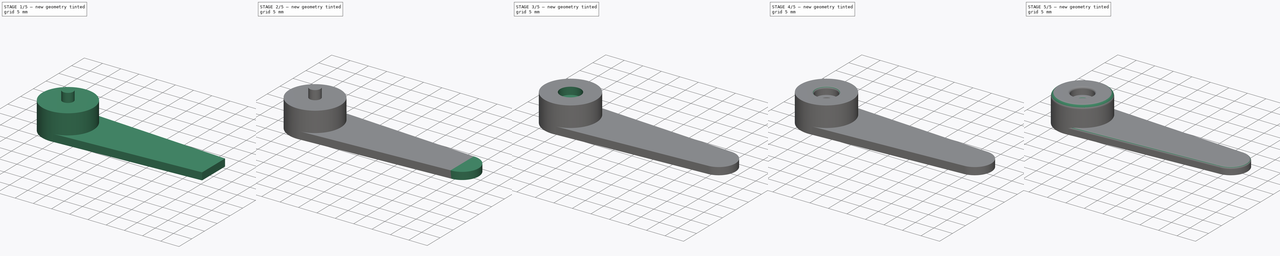
[diagram: build sequence overview — one tinted view per stage of 5, left to right]
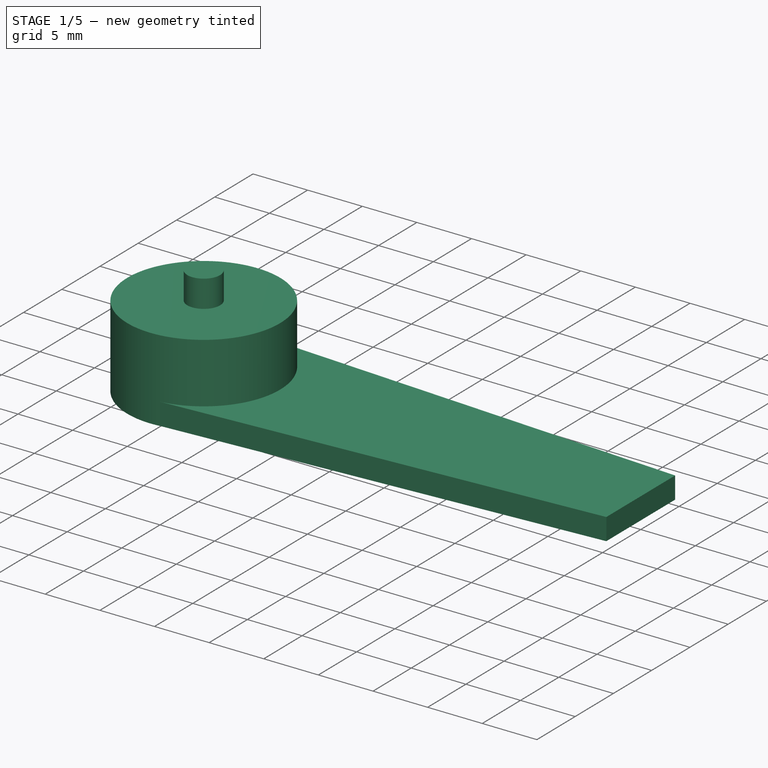
[diagram: stage 1 of 5 — iso view after this stage's code; geometry added in this stage tinted green]
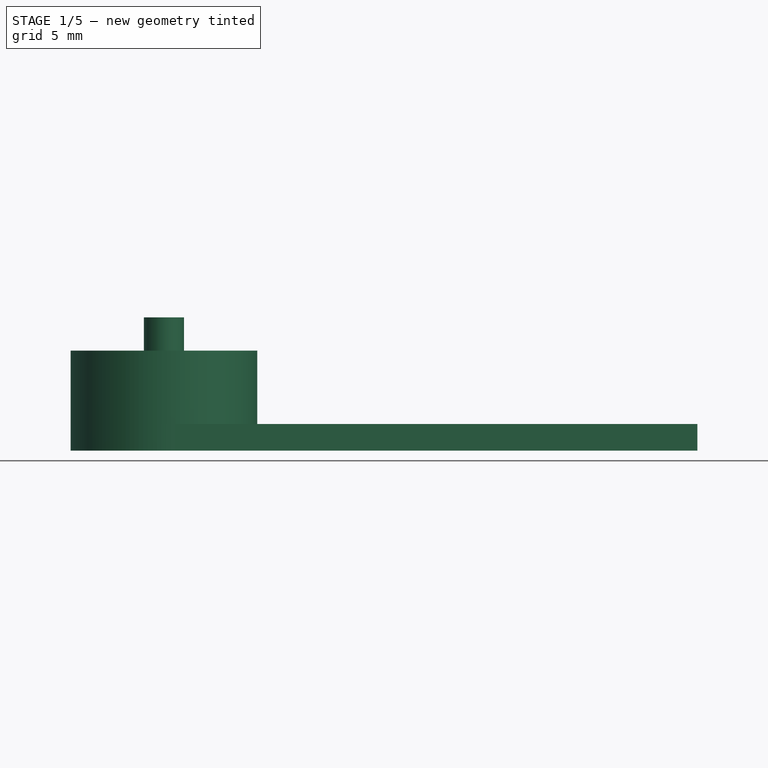
[diagram: stage 1 of 5 — front view after this stage's code; geometry added in this stage tinted green]
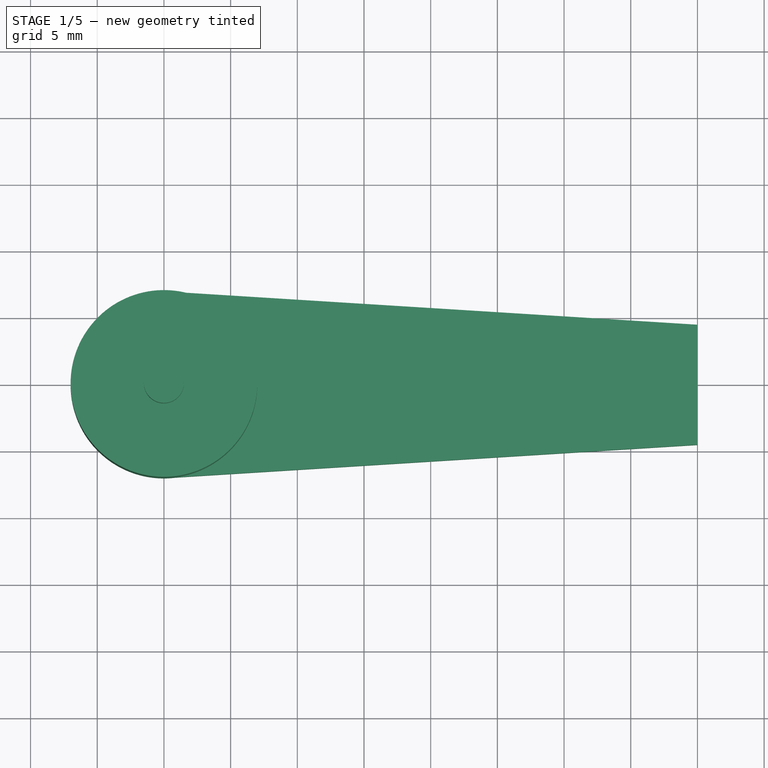
[diagram: stage 1 of 5 — top view after this stage's code; geometry added in this stage tinted green]
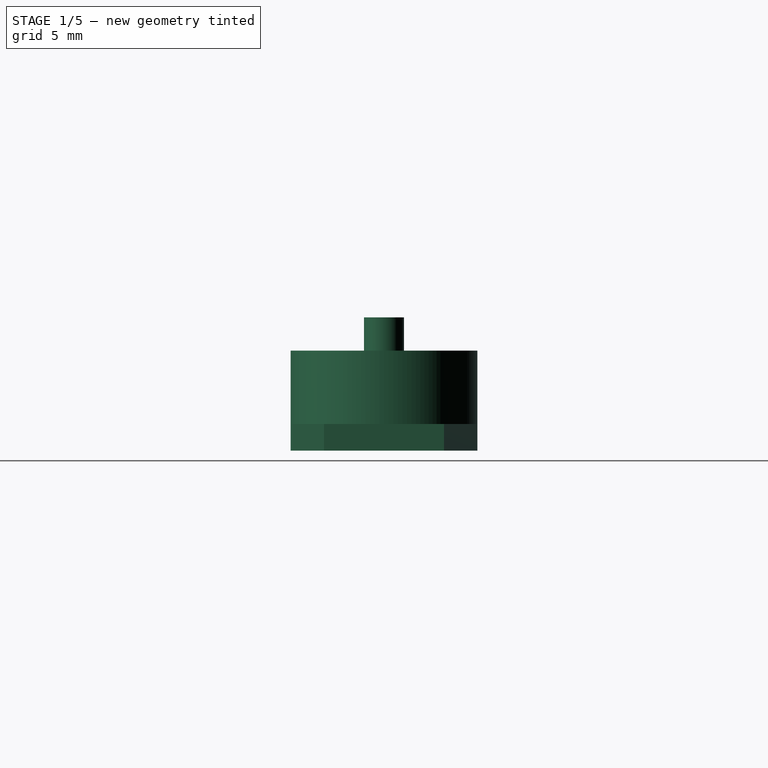
[diagram: stage 1 of 5 — right view after this stage's code; geometry added in this stage tinted green]
FCSTD DOCUMENT  (FreeCAD 0.20R29177 (Git))
Label: ServoArm
License: All rights reserved
LicenseURL: http://en.wikipedia.org/wiki/All_rights_reserved
objects: Sketcher::SketchObject×6, PartDesign::Fillet×6, Part::Extrusion×5, Part::Fuse×2, PartDesign::FeatureBase×2, Part::Cut×2, PartDesign::Body×2, Spreadsheet::Sheet×1, PartDesign::Pocket×1
note: 33 computed .brp shape members not serialized (recipe doc carries the construction recipe); baked Part::Feature solids carry a one-line shape summary decoded from their .brp

FEATURE [Sketcher::SketchObject] Sketch  label="SketchBase"
  FullyConstrained = true
  MapMode = 5
  Support = -> [XY_Plane]
  expr: Constraints[1] = Spreadsheet.motorMountR * 2
  sketch-geometry (1):
    g0: Circle CenterX=0 CenterY=0 CenterZ=0 NormalX=0 NormalY=0 NormalZ=1 AngleXU=0 Radius=7
  constraints (2):
    c: Coincident(g0,g-1)
    c: Diameter(g0) = 14
FEATURE [Spreadsheet::Sheet] Spreadsheet
  cells = A2=length; B2(length)=40; D2=40; A3=motorMountR; B3(motorMountR)=7; D3=7; A4=motorScrewR; B4(motorScrewR)=1.5; D4=1.3; A5=mortorScrewCapR; B5(mortorScrewCapR)=2.8; D5=2.6; A6=headR; B6(headR)=4.5; D6=4.5; A7=motorHeadR; B7(motorHeadR)=2.9; D7=2.5; A8=motorHeadHeight; B8(motorHeadHeight)=3; D8=3; A9=motorScrewCapHeight; B9(motorScrewCapHeight)=2; D9=2; A10=servoArmThinkness; B10(servoArmThinkness)=2; D10=2; A11=morotMountHeight; B11(morotMountHeight)=7.5; D11=7.5
FEATURE [Sketcher::SketchObject] Sketch001  label="SketchArm"
  FullyConstrained = false
  MapMode = 2
  Support = -> [Sketch]
  expr: Constraints[2] = Spreadsheet.headR
  expr: Constraints[7] = Spreadsheet.length
  expr: Constraints[8] = Spreadsheet.motorMountR
  expr: Constraints[9] = Spreadsheet.motorMountR
  sketch-geometry (4):
    g0: LineSegment StartX=40 StartY=4.5 StartZ=0 EndX=0 EndY=7 EndZ=0
    g1: LineSegment StartX=40 StartY=-4.5 StartZ=0 EndX=0 EndY=-7 EndZ=0
    g2: LineSegment StartX=40 StartY=4.5 StartZ=0 EndX=40 EndY=-4.5 EndZ=0
    g3: LineSegment StartX=0 StartY=7 StartZ=0 EndX=0 EndY=-7 EndZ=0
  constraints (11):
    c: PointOnObject(g1,g-2)
    c: Vertical(g2)
    c: DistanceY(g-1,g2) = 4.5
    c: Coincident(g1,g2)
    c: Coincident(g0,g2)
    c: Coincident(g3,g0)
    c: Coincident(g1,g3)
    c: DistanceX(g-1,g1) = 40
    c: DistanceY(g-1,g0) = 7
    c: DistanceY(g1,g-1) = 7
    c: DistanceX(g0,g-1) = 0
FEATURE [Part::Extrusion] Extrude  label="ExtrudeArm"
  Base = -> Sketch001
  Dir = (0,0,1)
  DirMode = 2
  FaceMakerClass = Part::FaceMakerBullseye
  LengthFwd = 2
  LengthRev = 0
  Solid = true
  Symmetric = false
  expr: LengthFwd = Spreadsheet.servoArmThinkness
FEATURE [Part::Extrusion] Extrude001  label="ExtrudeMount"
  Base = -> Sketch
  Dir = (0,0,1)
  DirMode = 2
  FaceMakerClass = Part::FaceMakerBullseye
  LengthFwd = 7.5
  LengthRev = 0
  Solid = true
  Symmetric = false
  expr: LengthFwd = Spreadsheet.morotMountHeight
FEATURE [Sketcher::SketchObject] Sketch004  label="SketchMotorHead"
  FullyConstrained = true
  MapMode = 5
  Support = -> [XY_Plane]
  expr: Constraints[1] = Spreadsheet.motorHeadR * 2
  sketch-geometry (1):
    g0: Circle CenterX=0 CenterY=0 CenterZ=0 NormalX=0 NormalY=0 NormalZ=1 AngleXU=0 Radius=2.9
  constraints (2):
    c: Coincident(g0,g-1)
    c: Diameter(g0) = 5.8
FEATURE [Part::Extrusion] Extrude003  label="ExtrudeMotorHead"
  Base = -> Sketch004
  Dir = (0,0,1)
  DirMode = 2
  FaceMakerClass = Part::FaceMakerBullseye
  LengthFwd = 3
  LengthRev = 0
  Solid = true
  Symmetric = false
  expr: LengthFwd = Spreadsheet.motorHeadHeight
FEATURE [Sketcher::SketchObject] Sketch005  label="SketchScrewHole"
  FullyConstrained = false
  MapMode = 5
  Support = -> [XY_Plane]
  expr: Constraints[1] = Spreadsheet.motorScrewR * 2
  sketch-geometry (1):
    g0: Circle CenterX=0 CenterY=0 CenterZ=0 NormalX=0 NormalY=0 NormalZ=1 AngleXU=0 Radius=1.5
  constraints (2):
    c: PointOnObject(g0,g-2)
    c: Diameter(g0) = 3
FEATURE [PartDesign::Body] Body
  BaseFeature = -> Fusion001
  Group = -> [BaseFeature,Sketch,Sketch001,Sketch002,Sketch003,Pocket,Sketch004,Sketch005]
  Origin = -> Origin
  Tip = -> Pocket
FEATURE [Part::Extrusion] Extrude004  label="ExtrudeScrew"
  Base = -> Sketch005
  Dir = (0,0,1)
  DirMode = 2
  FaceMakerClass = Part::FaceMakerBullseye
  LengthFwd = 10
  LengthRev = 0
  Solid = true
  Symmetric = false
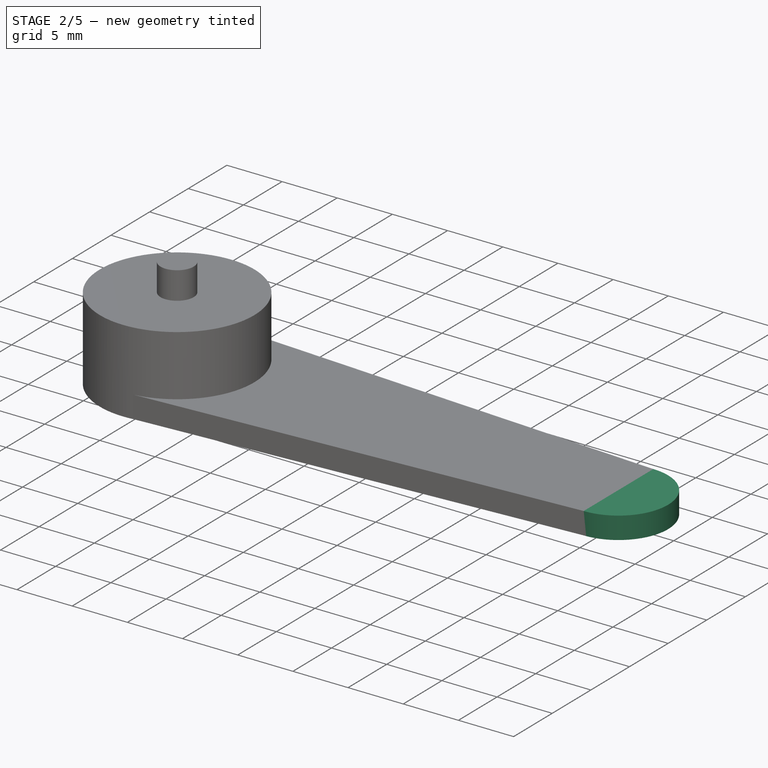
[diagram: stage 2 of 5 — iso view after this stage's code; geometry added in this stage tinted green]
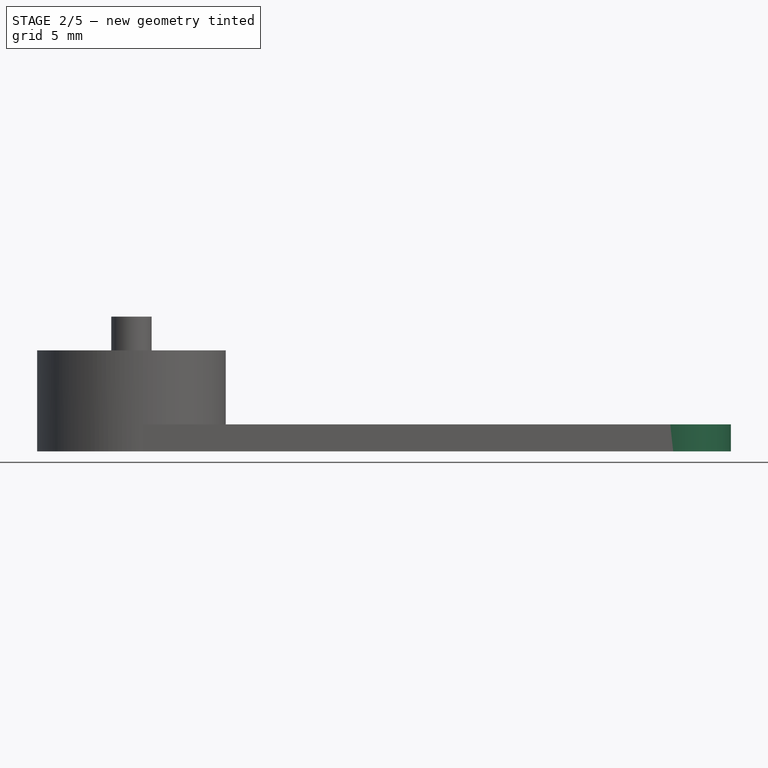
[diagram: stage 2 of 5 — front view after this stage's code; geometry added in this stage tinted green]
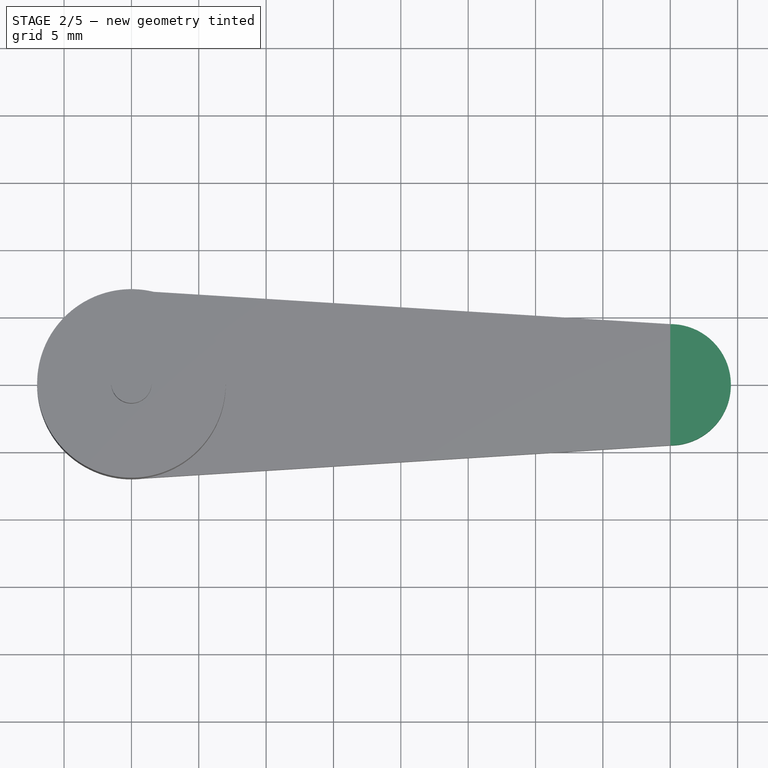
[diagram: stage 2 of 5 — top view after this stage's code; geometry added in this stage tinted green]
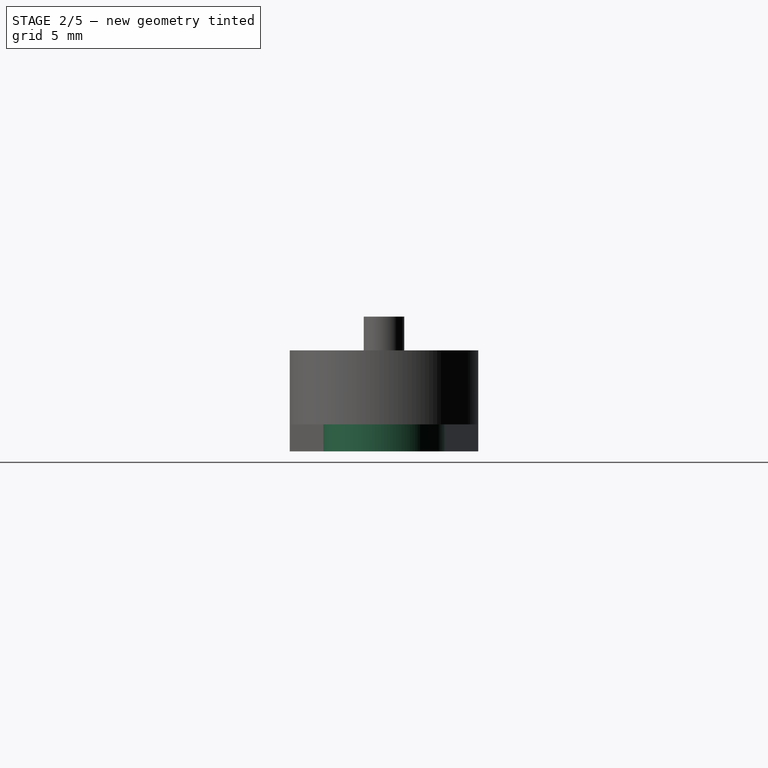
[diagram: stage 2 of 5 — right view after this stage's code; geometry added in this stage tinted green]
FEATURE [Sketcher::SketchObject] Sketch002  label="SketchHead"
  FullyConstrained = true
  MapMode = 5
  Support = -> [XY_Plane]
  expr: Constraints[0] = Spreadsheet.headR * 2
  expr: Constraints[1] = Spreadsheet.length
  sketch-geometry (1):
    g0: Circle CenterX=40 CenterY=0 CenterZ=0 NormalX=0 NormalY=0 NormalZ=1 AngleXU=0 Radius=4.5
  constraints (3):
    c: Diameter(g0) = 9
    c: DistanceX(g-1,g0) = 40
    c: DistanceY(g-1,g0) = 0
FEATURE [Part::Extrusion] Extrude002  label="ExtrudeHead"
  Base = -> Sketch002
  Dir = (0,0,1)
  DirMode = 2
  FaceMakerClass = Part::FaceMakerBullseye
  LengthFwd = 2
  LengthRev = 0
  Solid = true
  Symmetric = false
  expr: LengthFwd = Spreadsheet.servoArmThinkness
FEATURE [Part::Fuse] Fusion
  Base = -> Extrude
  Tool = -> Extrude001
FEATURE [Part::Fuse] Fusion001  label="FusionArmMount"
  Base = -> Fusion
  Tool = -> Extrude002
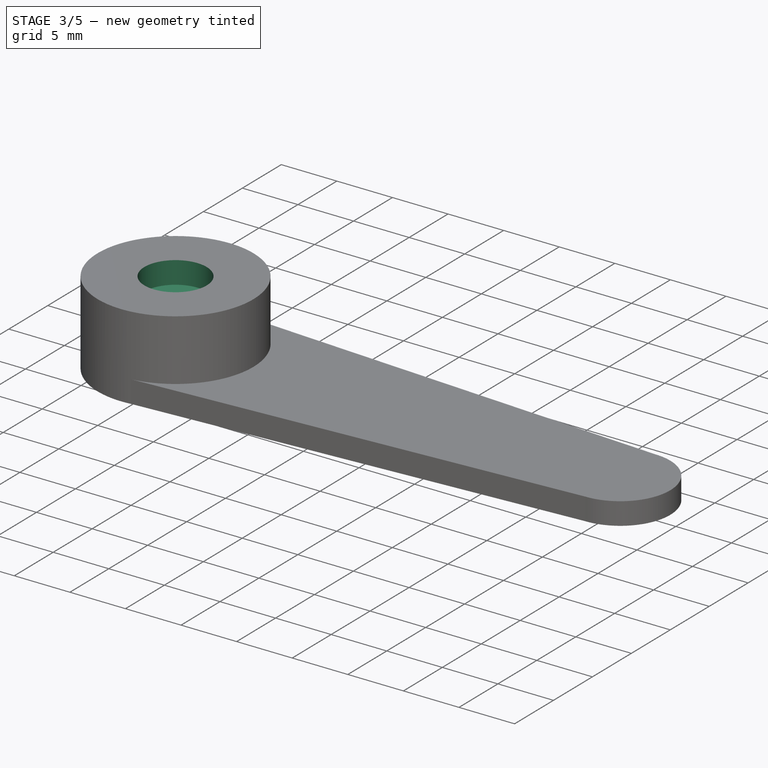
[diagram: stage 3 of 5 — iso view after this stage's code; geometry added in this stage tinted green]
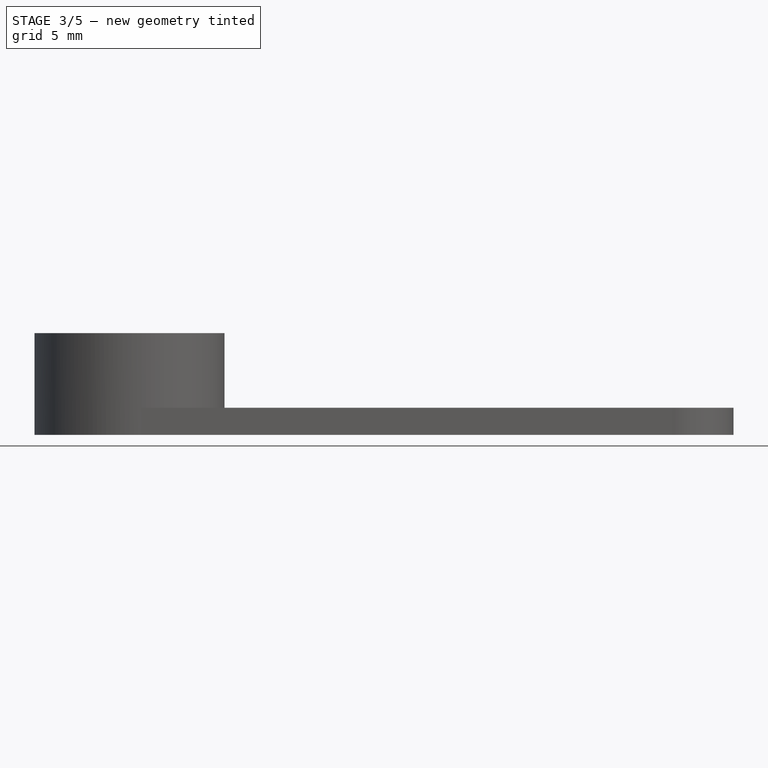
[diagram: stage 3 of 5 — front view after this stage's code; geometry added in this stage tinted green]
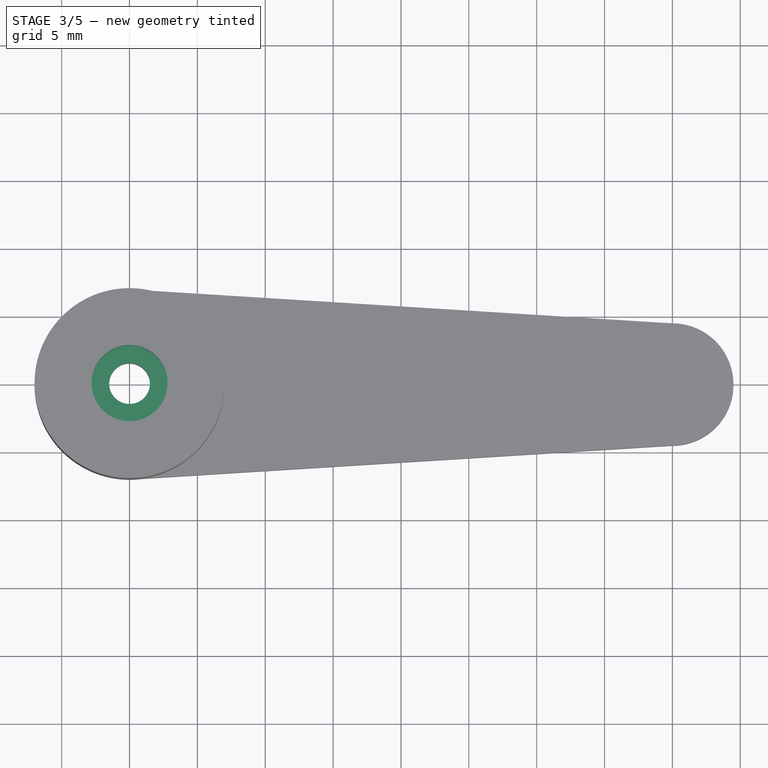
[diagram: stage 3 of 5 — top view after this stage's code; geometry added in this stage tinted green]
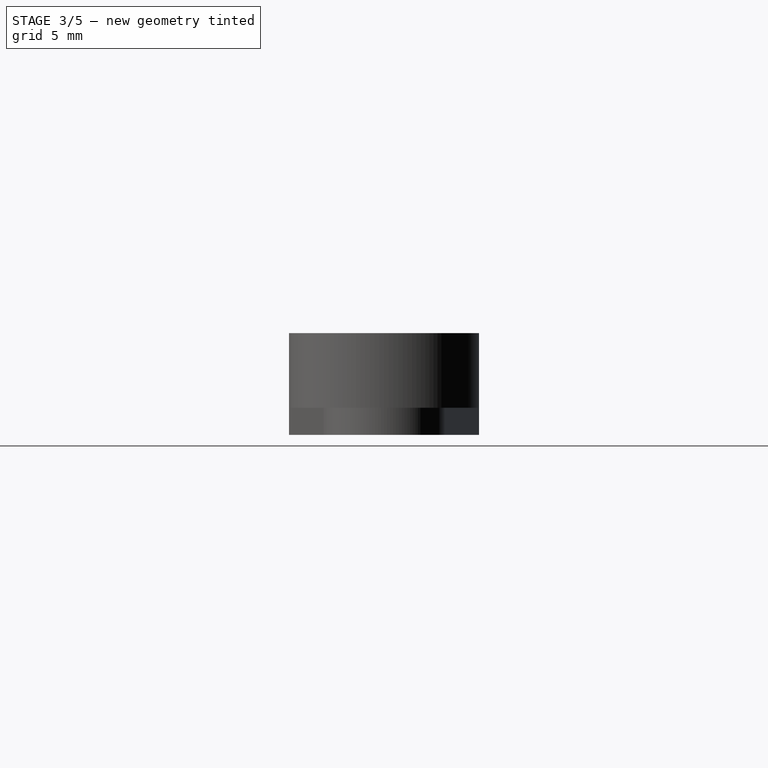
[diagram: stage 3 of 5 — right view after this stage's code; geometry added in this stage tinted green]
FEATURE [Sketcher::SketchObject] Sketch003  label="SketchScrewCap"
  FullyConstrained = true
  MapMode = 5
  Placement = pos=(0,0,7.5) rot=(0,0,1;0rad)
  Support = -> [Fusion001]
  expr: Constraints[1] = Spreadsheet.mortorScrewCapR * 2
  sketch-geometry (1):
    g0: Circle CenterX=0 CenterY=0 CenterZ=0 NormalX=0 NormalY=0 NormalZ=1 AngleXU=0 Radius=2.8
  constraints (2):
    c: Coincident(g0,g-1)
    c: Diameter(g0) = 5.6
FEATURE [PartDesign::FeatureBase] BaseFeature
  BaseFeature = -> Fusion001
FEATURE [PartDesign::Pocket] Pocket
  BaseFeature = -> BaseFeature
  Direction = (0,0,-1)
  Length = 2
  Length2 = 5
  Profile = -> Sketch003
  ReferenceAxis = -> Sketch003 [N_Axis]
  Type = 0
  expr: Length = Spreadsheet.motorScrewCapHeight
FEATURE [Part::Cut] Cut
  Base = -> Pocket
  Tool = -> Extrude003
FEATURE [Part::Cut] Cut001  label="CutResult"
  Base = -> Cut
  Tool = -> Extrude004
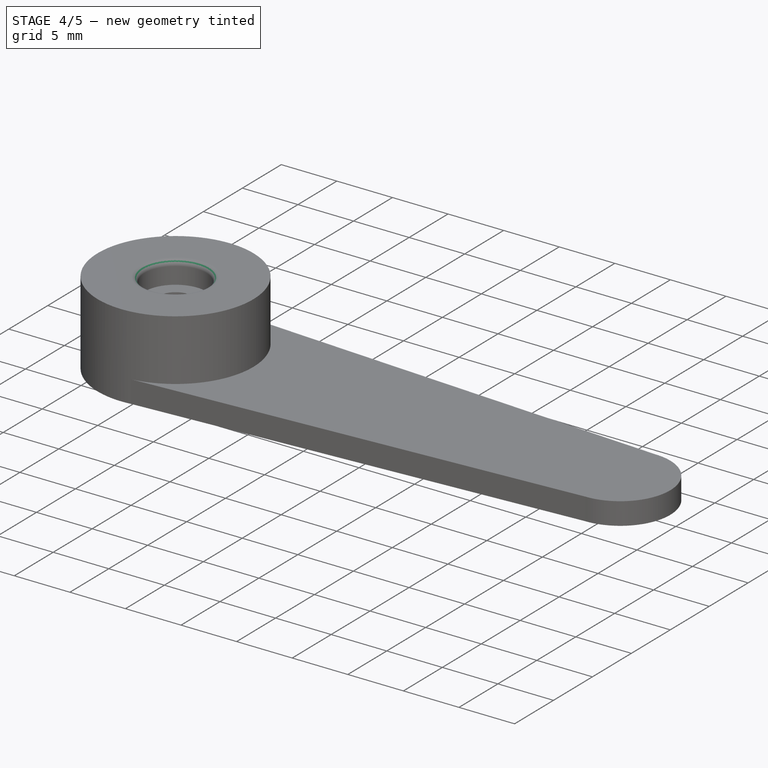
[diagram: stage 4 of 5 — iso view after this stage's code; geometry added in this stage tinted green]
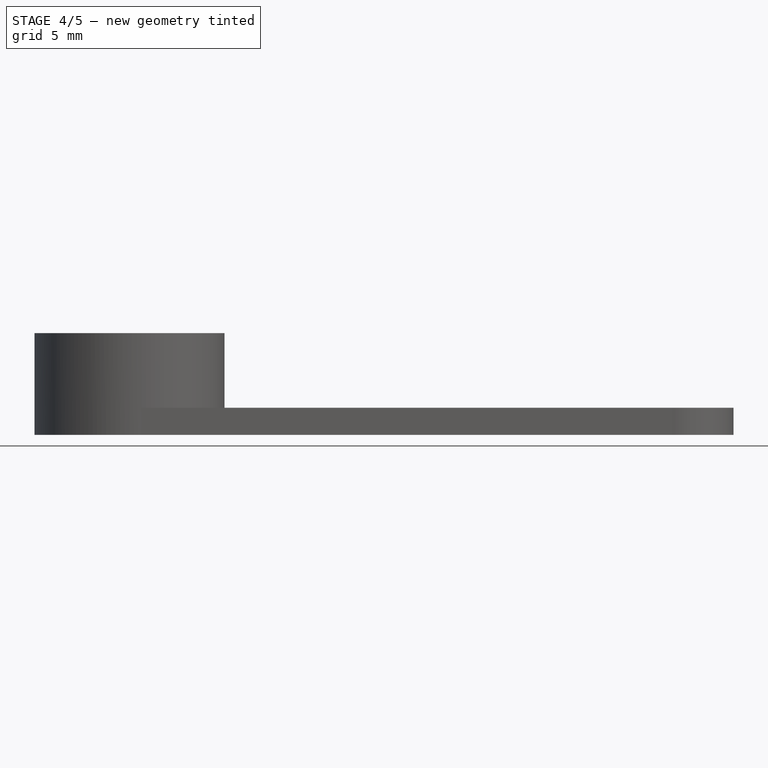
[diagram: stage 4 of 5 — front view after this stage's code; geometry added in this stage tinted green]
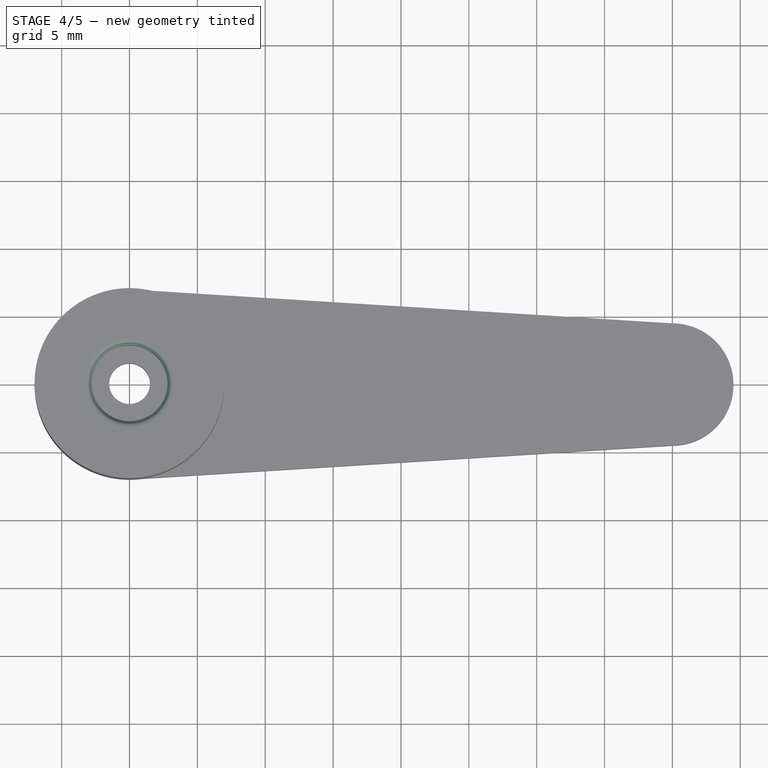
[diagram: stage 4 of 5 — top view after this stage's code; geometry added in this stage tinted green]
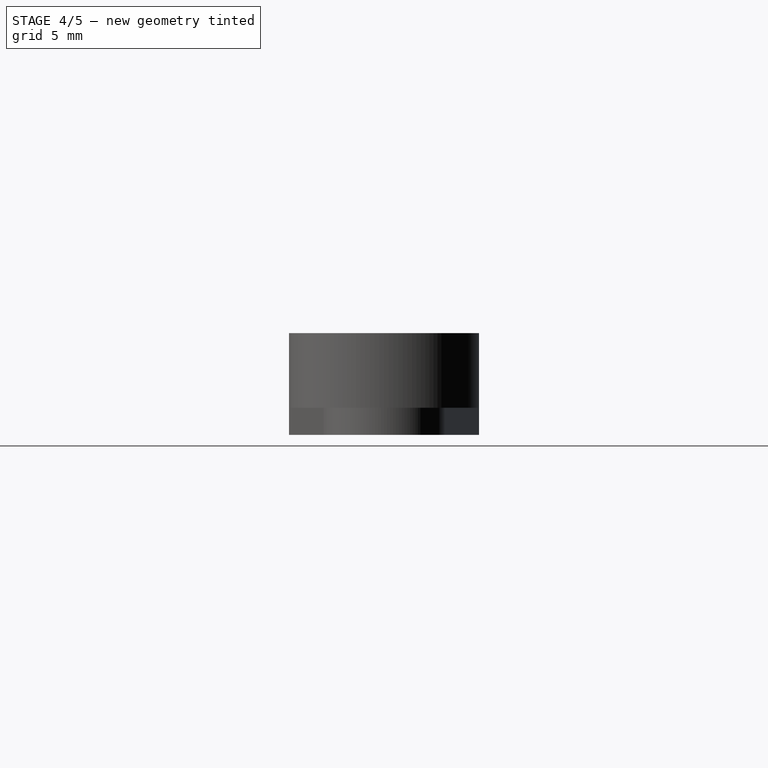
[diagram: stage 4 of 5 — right view after this stage's code; geometry added in this stage tinted green]
FEATURE [PartDesign::FeatureBase] BaseFeature001
  BaseFeature = -> Cut001
FEATURE [PartDesign::Fillet] Fillet
  Base = -> BaseFeature001 [Edge36]
  BaseFeature = -> BaseFeature001
  Radius = 0.5
  SupportTransform = false
  UseAllEdges = false
FEATURE [PartDesign::Fillet] Fillet001
  Base = -> Fillet [Edge24]
  BaseFeature = -> Fillet
  Radius = 0.5
  SupportTransform = false
  UseAllEdges = false
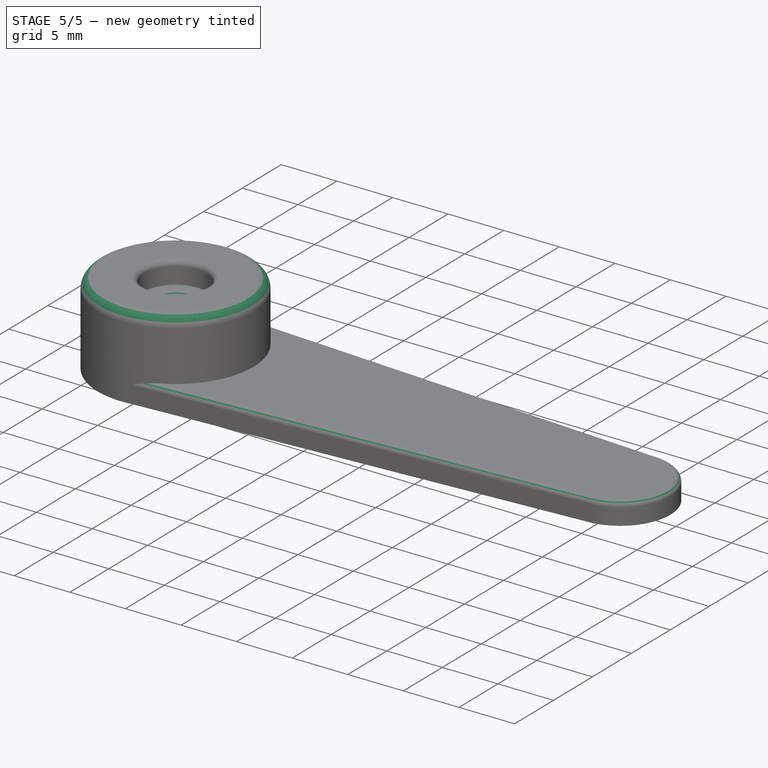
[diagram: stage 5 of 5 — iso view after this stage's code; geometry added in this stage tinted green]
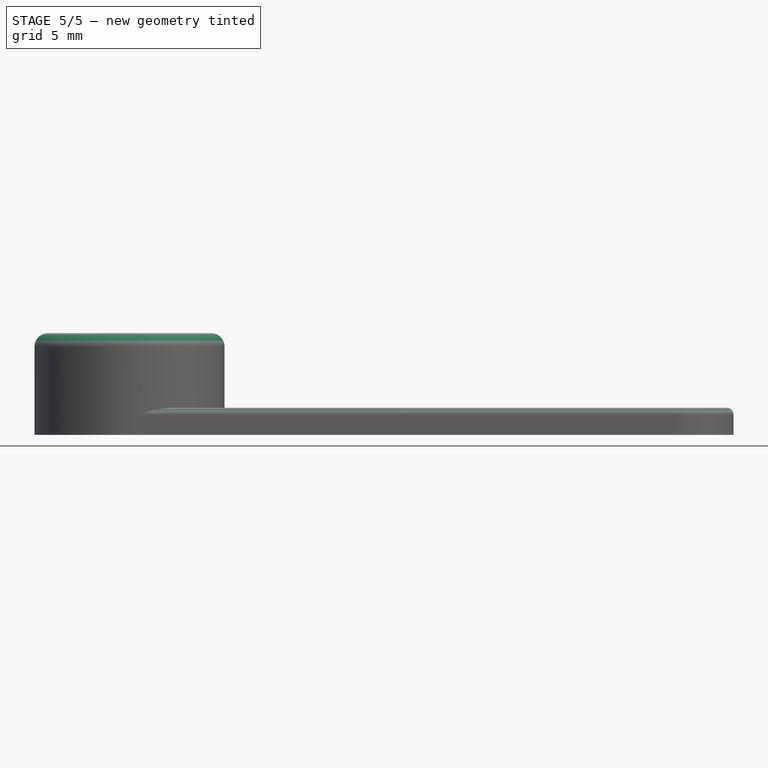
[diagram: stage 5 of 5 — front view after this stage's code; geometry added in this stage tinted green]
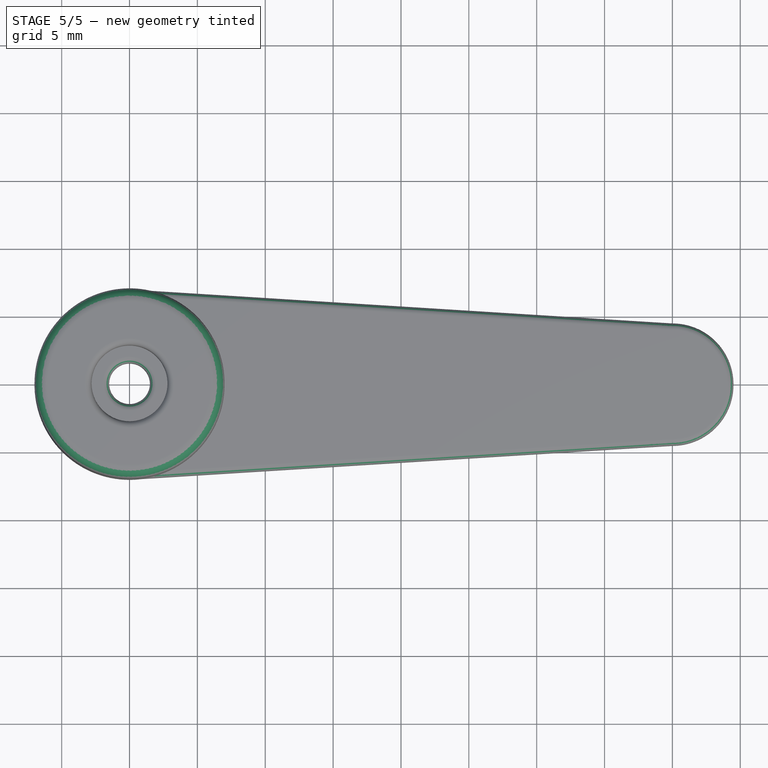
[diagram: stage 5 of 5 — top view after this stage's code; geometry added in this stage tinted green]
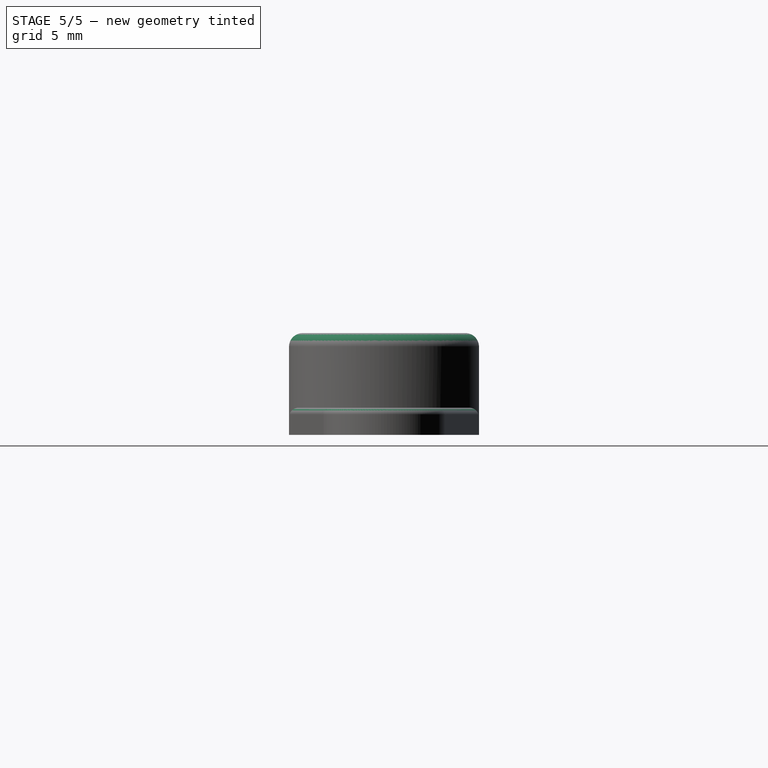
[diagram: stage 5 of 5 — right view after this stage's code; geometry added in this stage tinted green]
FEATURE [PartDesign::Fillet] Fillet002
  Base = -> Fillet001 [Edge39]
  BaseFeature = -> Fillet001
  Radius = 0.5
  SupportTransform = false
  UseAllEdges = false
FEATURE [PartDesign::Fillet] Fillet003
  Base = -> Fillet002 [Edge10]
  BaseFeature = -> Fillet002
  Radius = 0.5
  SupportTransform = false
  UseAllEdges = false
FEATURE [PartDesign::Fillet] Fillet004
  Base = -> Fillet003 [Edge24]
  BaseFeature = -> Fillet003
  Radius = 1
  SupportTransform = false
  UseAllEdges = false
FEATURE [PartDesign::Fillet] Fillet005
  Base = -> Fillet004 [Edge20]
  BaseFeature = -> Fillet004
  Radius = 0.5
  SupportTransform = false
  UseAllEdges = false
FEATURE [PartDesign::Body] Body001  label="ResultBody"
  BaseFeature = -> Cut001
  Group = -> [BaseFeature001,Fillet,Fillet001,Fillet002,Fillet003,Fillet004,Fillet005]
  Origin = -> Origin001
  Tip = -> Fillet005
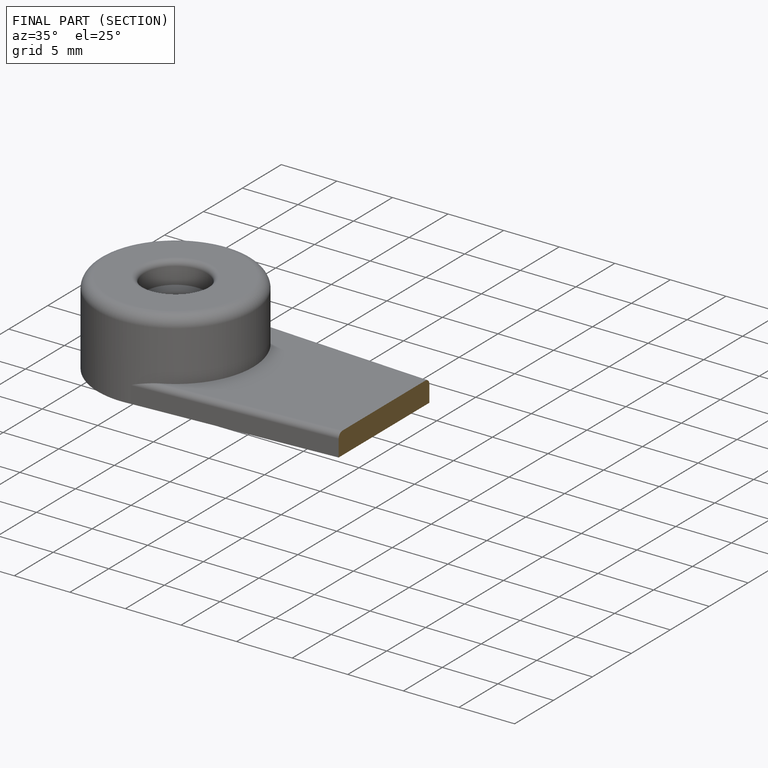
[diagram: finished part — half-section view (interior)]
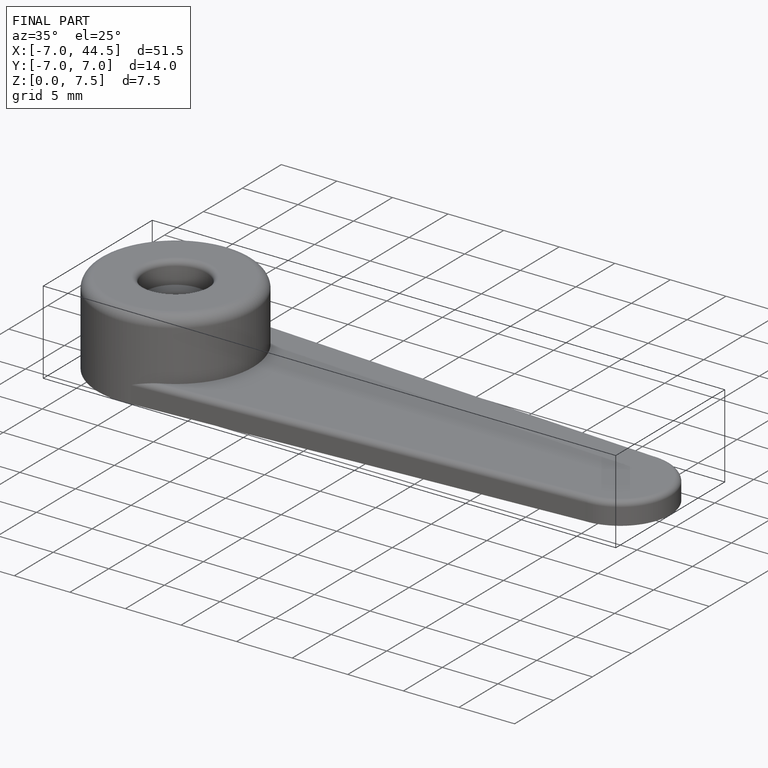
[diagram: finished part — iso view with bounding-box wireframe]
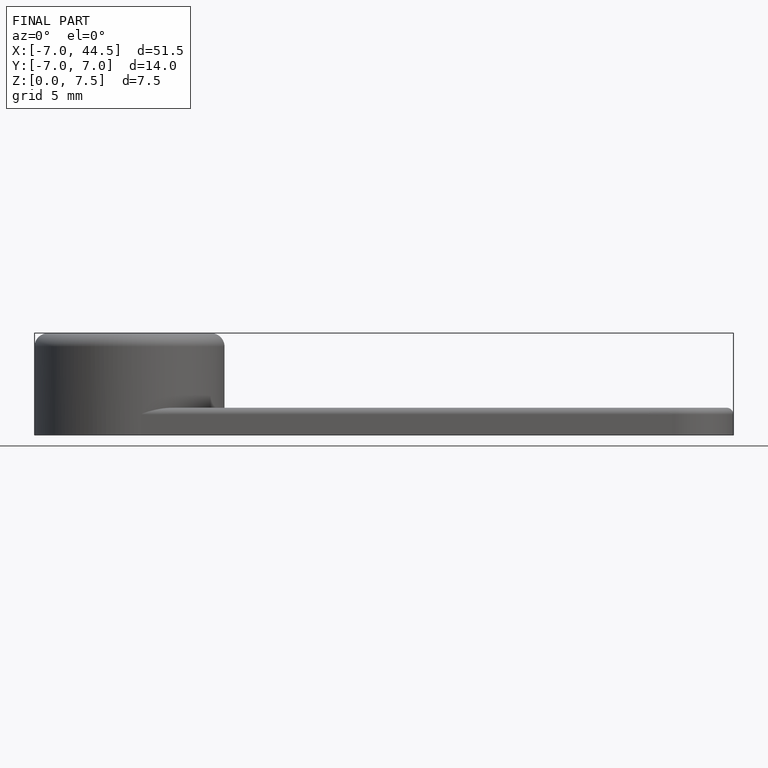
[diagram: finished part — front view with bounding-box wireframe]
